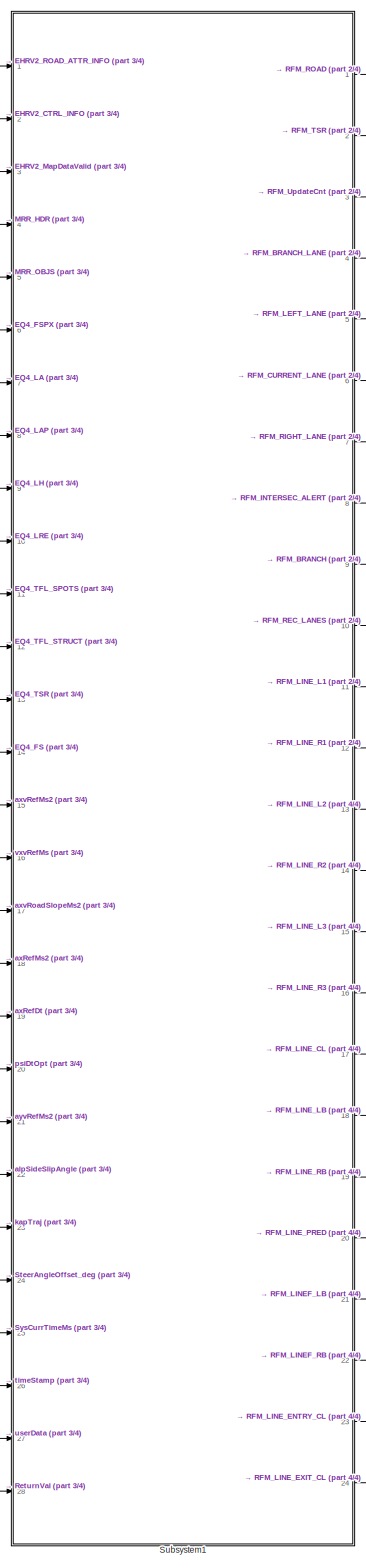
[diagram: root canvas - part 1/4, center side, full height]
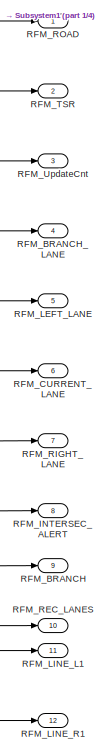
[diagram: root canvas - part 2/4, top right region]
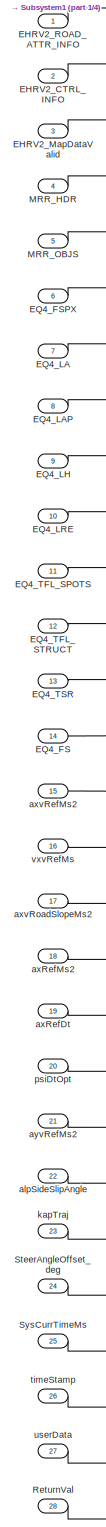
[diagram: root canvas - part 3/4, left side, full height]
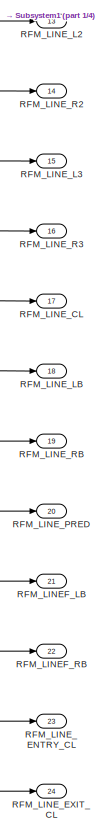
[diagram: root canvas - part 4/4, bottom right region]
MODEL slx_78e4f4142802
KIND model
CONFIG AbsTol = auto
CONFIG EnableMultiTasking = off
CONFIG FixedStep = auto
CONFIG InitFcn = , if any(exist('dsmpb_private', 'file') ~= 0), dsmpb_private('dsmpb_mdlclblib', 'Init', bdroot); end,\n
CONFIG MaxStep = auto
CONFIG MinStep = auto
CONFIG PostLoadFcn = if any(exist('dsrtsu_mdlpostloadfcn', 'file') ~= 0), dsrtsu_mdlpostloadfcn('Execute', bdroot); end
CONFIG RelTol = 1e-3
CONFIG SampleTimeConstraint = Unconstrained
CONFIG SolverName = FixedStepAuto
CONFIG StartTime = 0.0
CONFIG StopTime = Inf
WORKSPACE source: mxarray member
WORKSPACE EQ4COM_BrkPedalSts: Simulink.Signal (value not decoded)
WORKSPACE EQ4COM_ESP_MasterCylBrkPress: Simulink.Signal (value not decoded)
WORKSPACE EQ4COM_SteerWheelAng: Simulink.Signal (value not decoded)
WORKSPACE EQ4COM_SteerWheelAngSign: Simulink.Signal (value not decoded)
WORKSPACE EQ4COM_VehLatAccel: Simulink.Signal (value not decoded)
WORKSPACE EQ4COM_VehLgtAccel: Simulink.Signal (value not decoded)
WORKSPACE EQ4COM_VehSpd: Simulink.Signal (value not decoded)
WORKSPACE EQ4COM_VehYawRate: Simulink.Signal (value not decoded)
BLOCK [Inport] EHRV2_CTRL_INFO
  BusOutputAsStruct = on
  OutDataTypeStr = Bus: EHRV2_CTRL_INFO_BUS
  Port = 2
  PortDimensions = 1
BLOCK [Inport] EHRV2_MapDataValid
  BusOutputAsStruct = on
  OutDataTypeStr = uint8
  Port = 3
  PortDimensions = 1
BLOCK [Inport] EHRV2_ROAD_ATTR_INFO
  BusOutputAsStruct = on
  OutDataTypeStr = Bus: EHRV2_ROAD_ATTR_INFO_BUS
  PortDimensions = 1
BLOCK [Inport] EQ4_FS
  BusOutputAsStruct = on
  OutDataTypeStr = Bus: EQ4_FS_BUS
  Port = 14
  PortDimensions = 1
BLOCK [Inport] EQ4_FSPX
  BusOutputAsStruct = on
  OutDataTypeStr = Bus: EQ4_FSPX_BUS
  Port = 6
  PortDimensions = 1
BLOCK [Inport] EQ4_LA
  BusOutputAsStruct = on
  OutDataTypeStr = Bus: EQ4_LA_BUS
  Port = 7
  PortDimensions = 1
BLOCK [Inport] EQ4_LAP
  BusOutputAsStruct = on
  OutDataTypeStr = Bus: EQ4_LAP_BUS
  Port = 8
  PortDimensions = 1
BLOCK [Inport] EQ4_LH
  BusOutputAsStruct = on
  OutDataTypeStr = Bus: EQ4_LH_BUS
  Port = 9
  PortDimensions = 1
BLOCK [Inport] EQ4_LRE
  BusOutputAsStruct = on
  OutDataTypeStr = Bus: EQ4_LRE_BUS
  Port = 10
  PortDimensions = 1
BLOCK [Inport] EQ4_TFL_SPOTS
  BusOutputAsStruct = on
  OutDataTypeStr = Bus: EQ4_TFL_SPOTS_BUS
  Port = 11
  PortDimensions = 1
BLOCK [Inport] EQ4_TFL_STRUCT
  BusOutputAsStruct = on
  OutDataTypeStr = Bus: EQ4_TFL_STRUCT_BUS
  Port = 12
  PortDimensions = 1
BLOCK [Inport] EQ4_TSR
  BusOutputAsStruct = on
  OutDataTypeStr = Bus: EQ4_TSR_BUS
  Port = 13
  PortDimensions = 1
BLOCK [Inport] MRR_HDR
  BusOutputAsStruct = on
  OutDataTypeStr = Bus: MRR_HDR_BUS
  Port = 4
  PortDimensions = 1
BLOCK [Inport] MRR_OBJS
  BusOutputAsStruct = on
  OutDataTypeStr = Bus: MRR_OBJ_BUS
  Port = 5
  PortDimensions = 32
BLOCK [Outport] RFM_BRANCH
  BusOutputAsStruct = on
  OutDataTypeStr = Bus: RFM_BRANCH_BUS
  Port = 9
  PortDimensions = 1
BLOCK [Outport] RFM_BRANCH_LANE
  BusOutputAsStruct = on
  OutDataTypeStr = Bus: RFM_LANE_BUS
  Port = 4
  PortDimensions = 1
BLOCK [Outport] RFM_CURRENT_LANE
  BusOutputAsStruct = on
  OutDataTypeStr = Bus: RFM_LANE_BUS
  Port = 6
  PortDimensions = 1
BLOCK [Outport] RFM_INTERSEC_ALERT
  BusOutputAsStruct = on
  OutDataTypeStr = Bus: RFM_INTERSEC_ALERT_BUS
  Port = 8
  PortDimensions = 1
BLOCK [Outport] RFM_LEFT_LANE
  BusOutputAsStruct = on
  OutDataTypeStr = Bus: RFM_LANE_BUS
  Port = 5
  PortDimensions = 1
BLOCK [Outport] RFM_LINEF_LB
  BusOutputAsStruct = on
  OutDataTypeStr = Bus: RFM_LINE_BUS
  Port = 21
  PortDimensions = 1
BLOCK [Outport] RFM_LINEF_RB
  BusOutputAsStruct = on
  OutDataTypeStr = Bus: RFM_LINE_BUS
  Port = 22
  PortDimensions = 1
BLOCK [Outport] RFM_LINE_CL
  BusOutputAsStruct = on
  OutDataTypeStr = Bus: RFM_LINE_BUS
  Port = 17
  PortDimensions = 1
BLOCK [Outport] RFM_LINE_ENTRY_CL
  BusOutputAsStruct = on
  OutDataTypeStr = Bus: RFM_LINE_BUS
  Port = 23
  PortDimensions = 1
BLOCK [Outport] RFM_LINE_EXIT_CL
  BusOutputAsStruct = on
  OutDataTypeStr = Bus: RFM_LINE_BUS
  Port = 24
  PortDimensions = 1
BLOCK [Outport] RFM_LINE_L1
  BusOutputAsStruct = on
  OutDataTypeStr = Bus: RFM_LINE_BUS
  Port = 11
  PortDimensions = 1
BLOCK [Outport] RFM_LINE_L2
  BusOutputAsStruct = on
  OutDataTypeStr = Bus: RFM_LINE_BUS
  Port = 13
  PortDimensions = 1
BLOCK [Outport] RFM_LINE_L3
  BusOutputAsStruct = on
  OutDataTypeStr = Bus: RFM_LINE_BUS
  Port = 15
  PortDimensions = 1
BLOCK [Outport] RFM_LINE_LB
  BusOutputAsStruct = on
  OutDataTypeStr = Bus: RFM_LINE_BUS
  Port = 18
  PortDimensions = 1
BLOCK [Outport] RFM_LINE_PRED
  BusOutputAsStruct = on
  OutDataTypeStr = Bus: RFM_LINE_BUS
  Port = 20
  PortDimensions = 1
BLOCK [Outport] RFM_LINE_R1
  BusOutputAsStruct = on
  OutDataTypeStr = Bus: RFM_LINE_BUS
  Port = 12
  PortDimensions = 1
BLOCK [Outport] RFM_LINE_R2
  BusOutputAsStruct = on
  OutDataTypeStr = Bus: RFM_LINE_BUS
  Port = 14
  PortDimensions = 1
BLOCK [Outport] RFM_LINE_R3
  BusOutputAsStruct = on
  OutDataTypeStr = Bus: RFM_LINE_BUS
  Port = 16
  PortDimensions = 1
BLOCK [Outport] RFM_LINE_RB
  BusOutputAsStruct = on
  OutDataTypeStr = Bus: RFM_LINE_BUS
  Port = 19
  PortDimensions = 1
BLOCK [Outport] RFM_REC_LANES
  BusOutputAsStruct = on
  OutDataTypeStr = Bus: RFM_REC_LANES_BUS
  Port = 10
  PortDimensions = 1
BLOCK [Outport] RFM_RIGHT_LANE
  BusOutputAsStruct = on
  OutDataTypeStr = Bus: RFM_LANE_BUS
  Port = 7
  PortDimensions = 1
BLOCK [Outport] RFM_ROAD
  BusOutputAsStruct = on
  OutDataTypeStr = Bus: RFM_ROAD_BUS
BLOCK [Outport] RFM_TSR
  BusOutputAsStruct = on
  OutDataTypeStr = Bus: RFM_TSR_BUS
  Port = 2
  PortDimensions = 1
BLOCK [Outport] RFM_UpdateCnt
  BusOutputAsStruct = on
  OutDataTypeStr = uint32
  Port = 3
  PortDimensions = 1
BLOCK [Inport] ReturnVal
  BusOutputAsStruct = on
  OutDataTypeStr = uint8
  Port = 28
  PortDimensions = 1
BLOCK [Inport] SteerAngleOffset_deg
  BusOutputAsStruct = on
  OutDataTypeStr = single
  Port = 24
  PortDimensions = 1
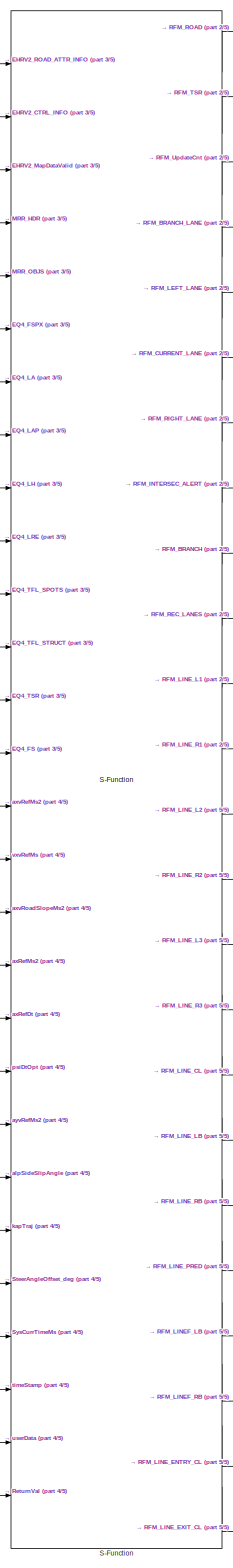
[diagram: Subsystem1 - part 1/5, center side, full height]
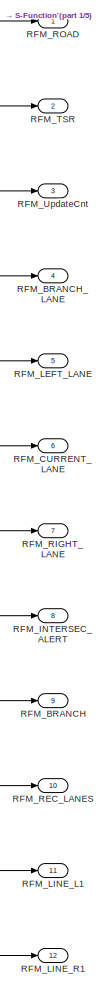
[diagram: Subsystem1 - part 2/5, top right region]
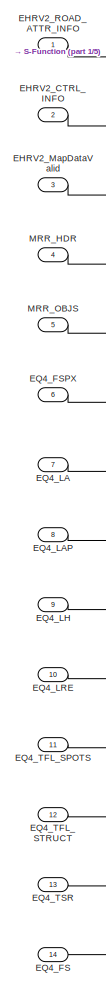
[diagram: Subsystem1 - part 3/5, top left region]
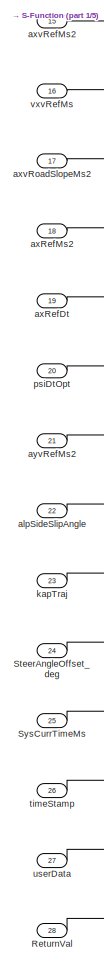
[diagram: Subsystem1 - part 4/5, bottom left region]
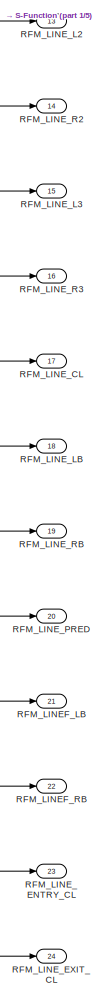
[diagram: Subsystem1 - part 5/5, bottom right region]
BLOCK [SubSystem] Subsystem1
  Ports = [28, 24]
  RequestExecContextInheritance = off
BLOCK [Inport] Subsystem1/EHRV2_CTRL_INFO
  BusOutputAsStruct = on
  OutDataTypeStr = Bus: EHRV2_CTRL_INFO_BUS
  Port = 2
  PortDimensions = 1
BLOCK [Inport] Subsystem1/EHRV2_MapDataValid
  BusOutputAsStruct = on
  OutDataTypeStr = uint8
  Port = 3
  PortDimensions = 1
BLOCK [Inport] Subsystem1/EHRV2_ROAD_ATTR_INFO
  BusOutputAsStruct = on
  OutDataTypeStr = Bus: EHRV2_ROAD_ATTR_INFO_BUS
  PortDimensions = 1
BLOCK [Inport] Subsystem1/EQ4_FS
  BusOutputAsStruct = on
  OutDataTypeStr = Bus: EQ4_FS_BUS
  Port = 14
  PortDimensions = 1
BLOCK [Inport] Subsystem1/EQ4_FSPX
  BusOutputAsStruct = on
  OutDataTypeStr = Bus: EQ4_FSPX_BUS
  Port = 6
  PortDimensions = 1
BLOCK [Inport] Subsystem1/EQ4_LA
  BusOutputAsStruct = on
  OutDataTypeStr = Bus: EQ4_LA_BUS
  Port = 7
  PortDimensions = 1
BLOCK [Inport] Subsystem1/EQ4_LAP
  BusOutputAsStruct = on
  OutDataTypeStr = Bus: EQ4_LAP_BUS
  Port = 8
  PortDimensions = 1
BLOCK [Inport] Subsystem1/EQ4_LH
  BusOutputAsStruct = on
  OutDataTypeStr = Bus: EQ4_LH_BUS
  Port = 9
  PortDimensions = 1
BLOCK [Inport] Subsystem1/EQ4_LRE
  BusOutputAsStruct = on
  OutDataTypeStr = Bus: EQ4_LRE_BUS
  Port = 10
  PortDimensions = 1
BLOCK [Inport] Subsystem1/EQ4_TFL_SPOTS
  BusOutputAsStruct = on
  OutDataTypeStr = Bus: EQ4_TFL_SPOTS_BUS
  Port = 11
  PortDimensions = 1
BLOCK [Inport] Subsystem1/EQ4_TFL_STRUCT
  BusOutputAsStruct = on
  OutDataTypeStr = Bus: EQ4_TFL_STRUCT_BUS
  Port = 12
  PortDimensions = 1
BLOCK [Inport] Subsystem1/EQ4_TSR
  BusOutputAsStruct = on
  OutDataTypeStr = Bus: EQ4_TSR_BUS
  Port = 13
  PortDimensions = 1
BLOCK [Inport] Subsystem1/MRR_HDR
  BusOutputAsStruct = on
  OutDataTypeStr = Bus: MRR_HDR_BUS
  Port = 4
  PortDimensions = 1
BLOCK [Inport] Subsystem1/MRR_OBJS
  BusOutputAsStruct = on
  OutDataTypeStr = Bus: MRR_OBJ_BUS
  Port = 5
  PortDimensions = 32
BLOCK [Outport] Subsystem1/RFM_BRANCH
  BusOutputAsStruct = on
  OutDataTypeStr = Bus: RFM_BRANCH_BUS
  Port = 9
  PortDimensions = 1
BLOCK [Outport] Subsystem1/RFM_BRANCH_LANE
  BusOutputAsStruct = on
  OutDataTypeStr = Bus: RFM_LANE_BUS
  Port = 4
  PortDimensions = 1
BLOCK [Outport] Subsystem1/RFM_CURRENT_LANE
  BusOutputAsStruct = on
  OutDataTypeStr = Bus: RFM_LANE_BUS
  Port = 6
  PortDimensions = 1
BLOCK [Outport] Subsystem1/RFM_INTERSEC_ALERT
  BusOutputAsStruct = on
  OutDataTypeStr = Bus: RFM_INTERSEC_ALERT_BUS
  Port = 8
  PortDimensions = 1
BLOCK [Outport] Subsystem1/RFM_LEFT_LANE
  BusOutputAsStruct = on
  OutDataTypeStr = Bus: RFM_LANE_BUS
  Port = 5
  PortDimensions = 1
BLOCK [Outport] Subsystem1/RFM_LINEF_LB
  BusOutputAsStruct = on
  OutDataTypeStr = Bus: RFM_LINE_BUS
  Port = 21
  PortDimensions = 1
BLOCK [Outport] Subsystem1/RFM_LINEF_RB
  BusOutputAsStruct = on
  OutDataTypeStr = Bus: RFM_LINE_BUS
  Port = 22
  PortDimensions = 1
BLOCK [Outport] Subsystem1/RFM_LINE_CL
  BusOutputAsStruct = on
  OutDataTypeStr = Bus: RFM_LINE_BUS
  Port = 17
  PortDimensions = 1
BLOCK [Outport] Subsystem1/RFM_LINE_ENTRY_CL
  BusOutputAsStruct = on
  OutDataTypeStr = Bus: RFM_LINE_BUS
  Port = 23
  PortDimensions = 1
BLOCK [Outport] Subsystem1/RFM_LINE_EXIT_CL
  BusOutputAsStruct = on
  OutDataTypeStr = Bus: RFM_LINE_BUS
  Port = 24
  PortDimensions = 1
BLOCK [Outport] Subsystem1/RFM_LINE_L1
  BusOutputAsStruct = on
  OutDataTypeStr = Bus: RFM_LINE_BUS
  Port = 11
  PortDimensions = 1
BLOCK [Outport] Subsystem1/RFM_LINE_L2
  BusOutputAsStruct = on
  OutDataTypeStr = Bus: RFM_LINE_BUS
  Port = 13
  PortDimensions = 1
BLOCK [Outport] Subsystem1/RFM_LINE_L3
  BusOutputAsStruct = on
  OutDataTypeStr = Bus: RFM_LINE_BUS
  Port = 15
  PortDimensions = 1
BLOCK [Outport] Subsystem1/RFM_LINE_LB
  BusOutputAsStruct = on
  OutDataTypeStr = Bus: RFM_LINE_BUS
  Port = 18
  PortDimensions = 1
BLOCK [Outport] Subsystem1/RFM_LINE_PRED
  BusOutputAsStruct = on
  OutDataTypeStr = Bus: RFM_LINE_BUS
  Port = 20
  PortDimensions = 1
BLOCK [Outport] Subsystem1/RFM_LINE_R1
  BusOutputAsStruct = on
  OutDataTypeStr = Bus: RFM_LINE_BUS
  Port = 12
  PortDimensions = 1
BLOCK [Outport] Subsystem1/RFM_LINE_R2
  BusOutputAsStruct = on
  OutDataTypeStr = Bus: RFM_LINE_BUS
  Port = 14
  PortDimensions = 1
BLOCK [Outport] Subsystem1/RFM_LINE_R3
  BusOutputAsStruct = on
  OutDataTypeStr = Bus: RFM_LINE_BUS
  Port = 16
  PortDimensions = 1
BLOCK [Outport] Subsystem1/RFM_LINE_RB
  BusOutputAsStruct = on
  OutDataTypeStr = Bus: RFM_LINE_BUS
  Port = 19
  PortDimensions = 1
BLOCK [Outport] Subsystem1/RFM_REC_LANES
  BusOutputAsStruct = on
  OutDataTypeStr = Bus: RFM_REC_LANES_BUS
  Port = 10
  PortDimensions = 1
BLOCK [Outport] Subsystem1/RFM_RIGHT_LANE
  BusOutputAsStruct = on
  OutDataTypeStr = Bus: RFM_LANE_BUS
  Port = 7
  PortDimensions = 1
BLOCK [Outport] Subsystem1/RFM_ROAD
  BusOutputAsStruct = on
  OutDataTypeStr = Bus: RFM_ROAD_BUS
BLOCK [Outport] Subsystem1/RFM_TSR
  BusOutputAsStruct = on
  OutDataTypeStr = Bus: RFM_TSR_BUS
  Port = 2
  PortDimensions = 1
BLOCK [Outport] Subsystem1/RFM_UpdateCnt
  BusOutputAsStruct = on
  OutDataTypeStr = uint32
  Port = 3
  PortDimensions = 1
BLOCK [Inport] Subsystem1/ReturnVal
  BusOutputAsStruct = on
  OutDataTypeStr = uint8
  Port = 28
  PortDimensions = 1
BLOCK [S-Function] Subsystem1/S-Function
  EnableBusSupport = off
  FunctionName = sfun_Fusion_road
  Ports = [28, 24]
  SFcnIsStateOwnerBlock = off
  SFunctionDeploymentMode = off
BLOCK [Inport] Subsystem1/SteerAngleOffset_deg
  BusOutputAsStruct = on
  OutDataTypeStr = single
  Port = 24
  PortDimensions = 1
BLOCK [Inport] Subsystem1/SysCurrTimeMs
  BusOutputAsStruct = on
  OutDataTypeStr = uint32
  Port = 25
  PortDimensions = 1
BLOCK [Inport] Subsystem1/alpSideSlipAngle
  BusOutputAsStruct = on
  OutDataTypeStr = single
  Port = 22
  PortDimensions = 1
BLOCK [Inport] Subsystem1/axRefDt
  BusOutputAsStruct = on
  OutDataTypeStr = single
  Port = 19
  PortDimensions = 1
BLOCK [Inport] Subsystem1/axRefMs2
  BusOutputAsStruct = on
  OutDataTypeStr = single
  Port = 18
  PortDimensions = 1
BLOCK [Inport] Subsystem1/axvRefMs2
  BusOutputAsStruct = on
  OutDataTypeStr = single
  Port = 15
  PortDimensions = 1
BLOCK [Inport] Subsystem1/axvRoadSlopeMs2
  BusOutputAsStruct = on
  OutDataTypeStr = single
  Port = 17
  PortDimensions = 1
BLOCK [Inport] Subsystem1/ayvRefMs2
  BusOutputAsStruct = on
  OutDataTypeStr = single
  Port = 21
  PortDimensions = 1
BLOCK [Inport] Subsystem1/kapTraj
  BusOutputAsStruct = on
  OutDataTypeStr = single
  Port = 23
  PortDimensions = 1
BLOCK [Inport] Subsystem1/psiDtOpt
  BusOutputAsStruct = on
  OutDataTypeStr = single
  Port = 20
  PortDimensions = 1
BLOCK [Inport] Subsystem1/timeStamp
  BusOutputAsStruct = on
  OutDataTypeStr = Bus: StbM_TimeStampExtendedType
  Port = 26
  PortDimensions = 1
BLOCK [Inport] Subsystem1/userData
  BusOutputAsStruct = on
  OutDataTypeStr = Bus: StbM_UserDataType
  Port = 27
  PortDimensions = 1
BLOCK [Inport] Subsystem1/vxvRefMs
  BusOutputAsStruct = on
  OutDataTypeStr = single
  Port = 16
  PortDimensions = 1
BLOCK [Inport] SysCurrTimeMs
  BusOutputAsStruct = on
  OutDataTypeStr = uint32
  Port = 25
  PortDimensions = 1
BLOCK [Inport] alpSideSlipAngle
  BusOutputAsStruct = on
  OutDataTypeStr = single
  Port = 22
  PortDimensions = 1
BLOCK [Inport] axRefDt
  BusOutputAsStruct = on
  OutDataTypeStr = single
  Port = 19
  PortDimensions = 1
BLOCK [Inport] axRefMs2
  BusOutputAsStruct = on
  OutDataTypeStr = single
  Port = 18
  PortDimensions = 1
BLOCK [Inport] axvRefMs2
  BusOutputAsStruct = on
  OutDataTypeStr = single
  Port = 15
  PortDimensions = 1
BLOCK [Inport] axvRoadSlopeMs2
  BusOutputAsStruct = on
  OutDataTypeStr = single
  Port = 17
  PortDimensions = 1
BLOCK [Inport] ayvRefMs2
  BusOutputAsStruct = on
  OutDataTypeStr = single
  Port = 21
  PortDimensions = 1
BLOCK [Inport] kapTraj
  BusOutputAsStruct = on
  OutDataTypeStr = single
  Port = 23
  PortDimensions = 1
BLOCK [Inport] psiDtOpt
  BusOutputAsStruct = on
  OutDataTypeStr = single
  Port = 20
  PortDimensions = 1
BLOCK [Inport] timeStamp
  BusOutputAsStruct = on
  OutDataTypeStr = Bus: StbM_TimeStampExtendedType
  Port = 26
  PortDimensions = 1
BLOCK [Inport] userData
  BusOutputAsStruct = on
  OutDataTypeStr = Bus: StbM_UserDataType
  Port = 27
  PortDimensions = 1
BLOCK [Inport] vxvRefMs
  BusOutputAsStruct = on
  OutDataTypeStr = single
  Port = 16
  PortDimensions = 1
LINE EHRV2_CTRL_INFO:1 -> Subsystem1:2
LINE EHRV2_MapDataValid:1 -> Subsystem1:3
LINE EHRV2_ROAD_ATTR_INFO:1 -> Subsystem1:1
LINE EQ4_FS:1 -> Subsystem1:14
LINE EQ4_FSPX:1 -> Subsystem1:6
LINE EQ4_LA:1 -> Subsystem1:7
LINE EQ4_LAP:1 -> Subsystem1:8
LINE EQ4_LH:1 -> Subsystem1:9
LINE EQ4_LRE:1 -> Subsystem1:10
LINE EQ4_TFL_SPOTS:1 -> Subsystem1:11
LINE EQ4_TFL_STRUCT:1 -> Subsystem1:12
LINE EQ4_TSR:1 -> Subsystem1:13
LINE MRR_HDR:1 -> Subsystem1:4
LINE MRR_OBJS:1 -> Subsystem1:5
LINE ReturnVal:1 -> Subsystem1:28
LINE SteerAngleOffset_deg:1 -> Subsystem1:24
LINE Subsystem1/EHRV2_CTRL_INFO:1 -> Subsystem1/S-Function:2
LINE Subsystem1/EHRV2_MapDataValid:1 -> Subsystem1/S-Function:3
LINE Subsystem1/EHRV2_ROAD_ATTR_INFO:1 -> Subsystem1/S-Function:1
LINE Subsystem1/EQ4_FS:1 -> Subsystem1/S-Function:14
LINE Subsystem1/EQ4_FSPX:1 -> Subsystem1/S-Function:6
LINE Subsystem1/EQ4_LA:1 -> Subsystem1/S-Function:7
LINE Subsystem1/EQ4_LAP:1 -> Subsystem1/S-Function:8
LINE Subsystem1/EQ4_LH:1 -> Subsystem1/S-Function:9
LINE Subsystem1/EQ4_LRE:1 -> Subsystem1/S-Function:10
LINE Subsystem1/EQ4_TFL_SPOTS:1 -> Subsystem1/S-Function:11
LINE Subsystem1/EQ4_TFL_STRUCT:1 -> Subsystem1/S-Function:12
LINE Subsystem1/EQ4_TSR:1 -> Subsystem1/S-Function:13
LINE Subsystem1/MRR_HDR:1 -> Subsystem1/S-Function:4
LINE Subsystem1/MRR_OBJS:1 -> Subsystem1/S-Function:5
LINE Subsystem1/ReturnVal:1 -> Subsystem1/S-Function:28
LINE Subsystem1/S-Function:1 -> Subsystem1/RFM_ROAD:1
LINE Subsystem1/S-Function:10 -> Subsystem1/RFM_REC_LANES:1
LINE Subsystem1/S-Function:11 -> Subsystem1/RFM_LINE_L1:1
LINE Subsystem1/S-Function:12 -> Subsystem1/RFM_LINE_R1:1
LINE Subsystem1/S-Function:13 -> Subsystem1/RFM_LINE_L2:1
LINE Subsystem1/S-Function:14 -> Subsystem1/RFM_LINE_R2:1
LINE Subsystem1/S-Function:15 -> Subsystem1/RFM_LINE_L3:1
LINE Subsystem1/S-Function:16 -> Subsystem1/RFM_LINE_R3:1
LINE Subsystem1/S-Function:17 -> Subsystem1/RFM_LINE_CL:1
LINE Subsystem1/S-Function:18 -> Subsystem1/RFM_LINE_LB:1
LINE Subsystem1/S-Function:19 -> Subsystem1/RFM_LINE_RB:1
LINE Subsystem1/S-Function:2 -> Subsystem1/RFM_TSR:1
LINE Subsystem1/S-Function:20 -> Subsystem1/RFM_LINE_PRED:1
LINE Subsystem1/S-Function:21 -> Subsystem1/RFM_LINEF_LB:1
LINE Subsystem1/S-Function:22 -> Subsystem1/RFM_LINEF_RB:1
LINE Subsystem1/S-Function:23 -> Subsystem1/RFM_LINE_ENTRY_CL:1
LINE Subsystem1/S-Function:24 -> Subsystem1/RFM_LINE_EXIT_CL:1
LINE Subsystem1/S-Function:3 -> Subsystem1/RFM_UpdateCnt:1
LINE Subsystem1/S-Function:4 -> Subsystem1/RFM_BRANCH_LANE:1
LINE Subsystem1/S-Function:5 -> Subsystem1/RFM_LEFT_LANE:1
LINE Subsystem1/S-Function:6 -> Subsystem1/RFM_CURRENT_LANE:1
LINE Subsystem1/S-Function:7 -> Subsystem1/RFM_RIGHT_LANE:1
LINE Subsystem1/S-Function:8 -> Subsystem1/RFM_INTERSEC_ALERT:1
LINE Subsystem1/S-Function:9 -> Subsystem1/RFM_BRANCH:1
LINE Subsystem1/SteerAngleOffset_deg:1 -> Subsystem1/S-Function:24
LINE Subsystem1/SysCurrTimeMs:1 -> Subsystem1/S-Function:25
LINE Subsystem1/alpSideSlipAngle:1 -> Subsystem1/S-Function:22
LINE Subsystem1/axRefDt:1 -> Subsystem1/S-Function:19
LINE Subsystem1/axRefMs2:1 -> Subsystem1/S-Function:18
LINE Subsystem1/axvRefMs2:1 -> Subsystem1/S-Function:15
LINE Subsystem1/axvRoadSlopeMs2:1 -> Subsystem1/S-Function:17
LINE Subsystem1/ayvRefMs2:1 -> Subsystem1/S-Function:21
LINE Subsystem1/kapTraj:1 -> Subsystem1/S-Function:23
LINE Subsystem1/psiDtOpt:1 -> Subsystem1/S-Function:20
LINE Subsystem1/timeStamp:1 -> Subsystem1/S-Function:26
LINE Subsystem1/userData:1 -> Subsystem1/S-Function:27
LINE Subsystem1/vxvRefMs:1 -> Subsystem1/S-Function:16
LINE Subsystem1:1 -> RFM_ROAD:1
LINE Subsystem1:10 -> RFM_REC_LANES:1
LINE Subsystem1:11 -> RFM_LINE_L1:1
LINE Subsystem1:12 -> RFM_LINE_R1:1
LINE Subsystem1:13 -> RFM_LINE_L2:1
LINE Subsystem1:14 -> RFM_LINE_R2:1
LINE Subsystem1:15 -> RFM_LINE_L3:1
LINE Subsystem1:16 -> RFM_LINE_R3:1
LINE Subsystem1:17 -> RFM_LINE_CL:1
LINE Subsystem1:18 -> RFM_LINE_LB:1
LINE Subsystem1:19 -> RFM_LINE_RB:1
LINE Subsystem1:2 -> RFM_TSR:1
LINE Subsystem1:20 -> RFM_LINE_PRED:1
LINE Subsystem1:21 -> RFM_LINEF_LB:1
LINE Subsystem1:22 -> RFM_LINEF_RB:1
LINE Subsystem1:23 -> RFM_LINE_ENTRY_CL:1
LINE Subsystem1:24 -> RFM_LINE_EXIT_CL:1
LINE Subsystem1:3 -> RFM_UpdateCnt:1
LINE Subsystem1:4 -> RFM_BRANCH_LANE:1
LINE Subsystem1:5 -> RFM_LEFT_LANE:1
LINE Subsystem1:6 -> RFM_CURRENT_LANE:1
LINE Subsystem1:7 -> RFM_RIGHT_LANE:1
LINE Subsystem1:8 -> RFM_INTERSEC_ALERT:1
LINE Subsystem1:9 -> RFM_BRANCH:1
LINE SysCurrTimeMs:1 -> Subsystem1:25
LINE alpSideSlipAngle:1 -> Subsystem1:22
LINE axRefDt:1 -> Subsystem1:19
LINE axRefMs2:1 -> Subsystem1:18
LINE axvRefMs2:1 -> Subsystem1:15
LINE axvRoadSlopeMs2:1 -> Subsystem1:17
LINE ayvRefMs2:1 -> Subsystem1:21
LINE kapTraj:1 -> Subsystem1:23
LINE psiDtOpt:1 -> Subsystem1:20
LINE timeStamp:1 -> Subsystem1:26
LINE userData:1 -> Subsystem1:27
LINE vxvRefMs:1 -> Subsystem1:16
